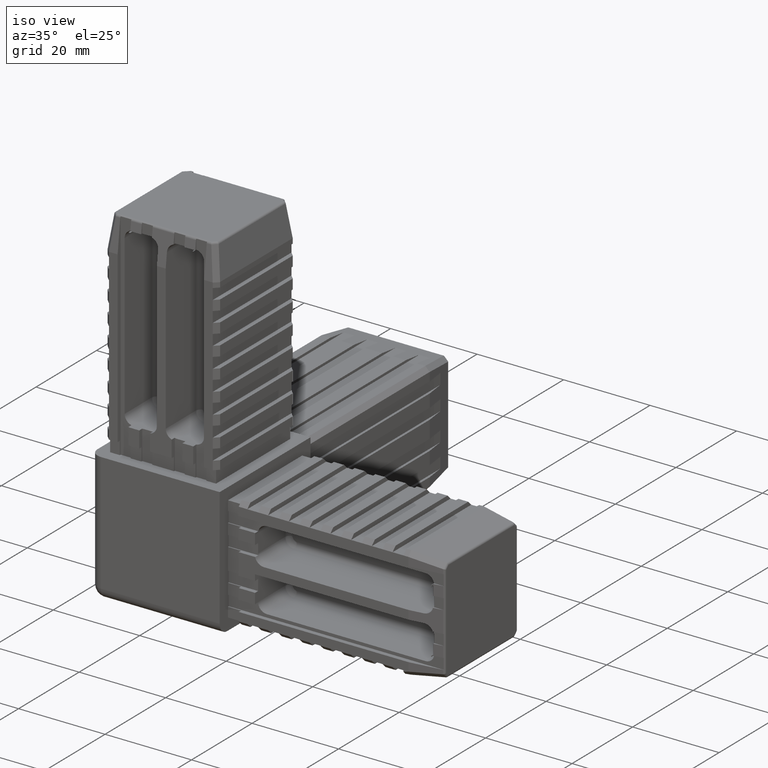
[diagram: clean part render]
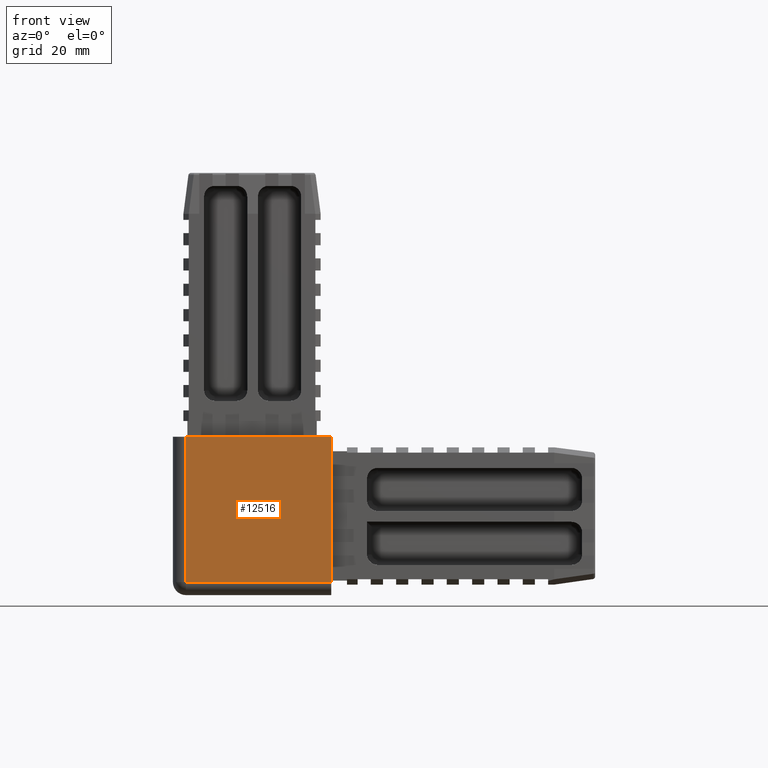
[diagram: tour spotlight — one face highlighted and labeled with its STEP entity id]
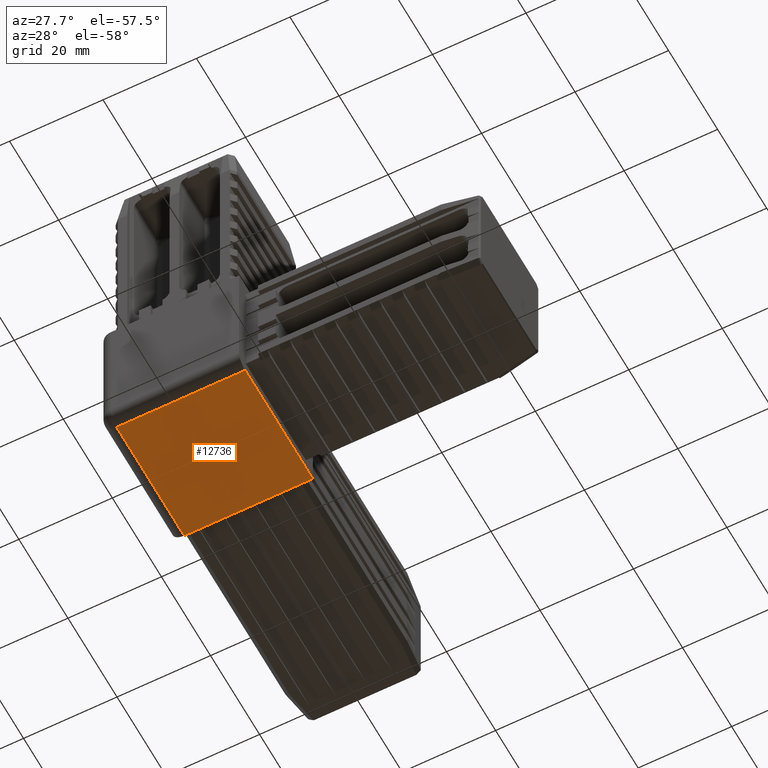
[diagram: tour spotlight — one face highlighted and labeled with its STEP entity id]
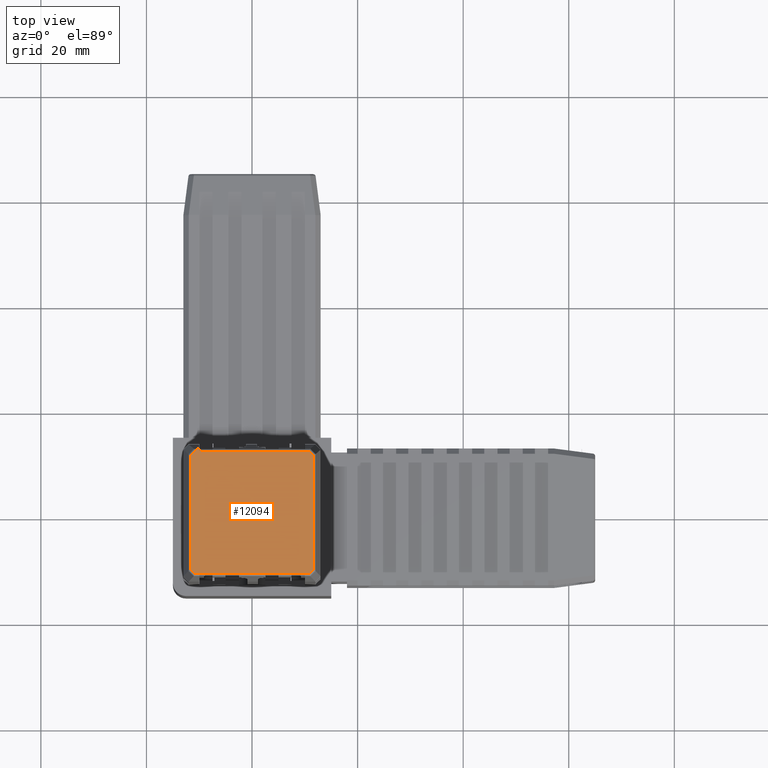
[diagram: tour spotlight — one face highlighted and labeled with its STEP entity id]
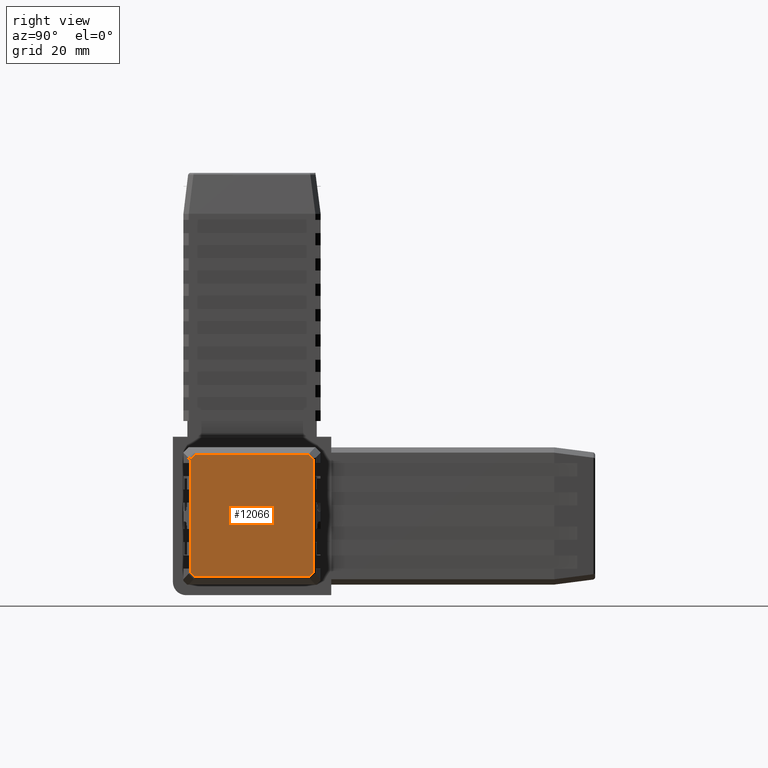
[diagram: tour spotlight — one face highlighted and labeled with its STEP entity id]
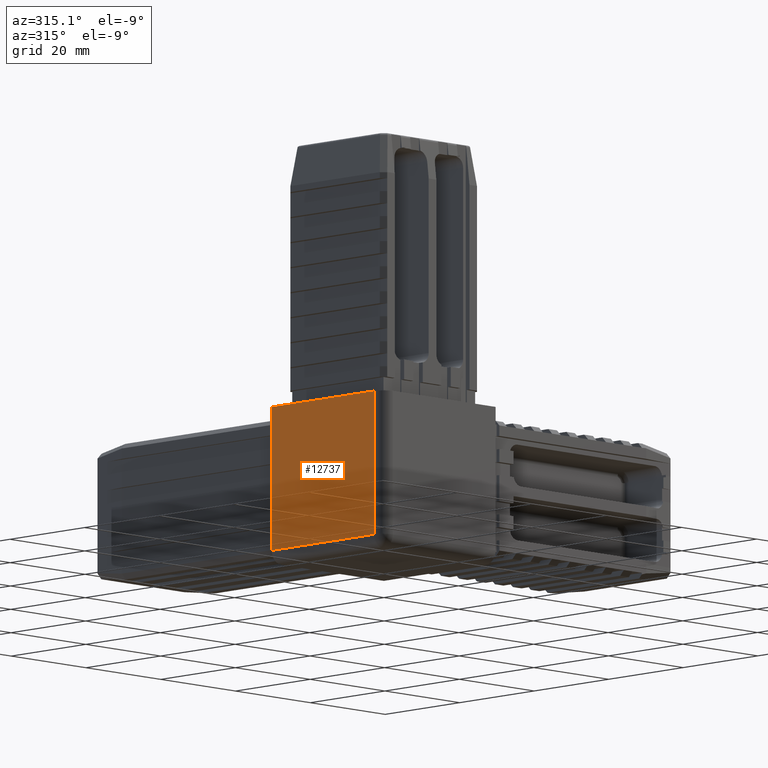
[diagram: tour spotlight — one face highlighted and labeled with its STEP entity id]
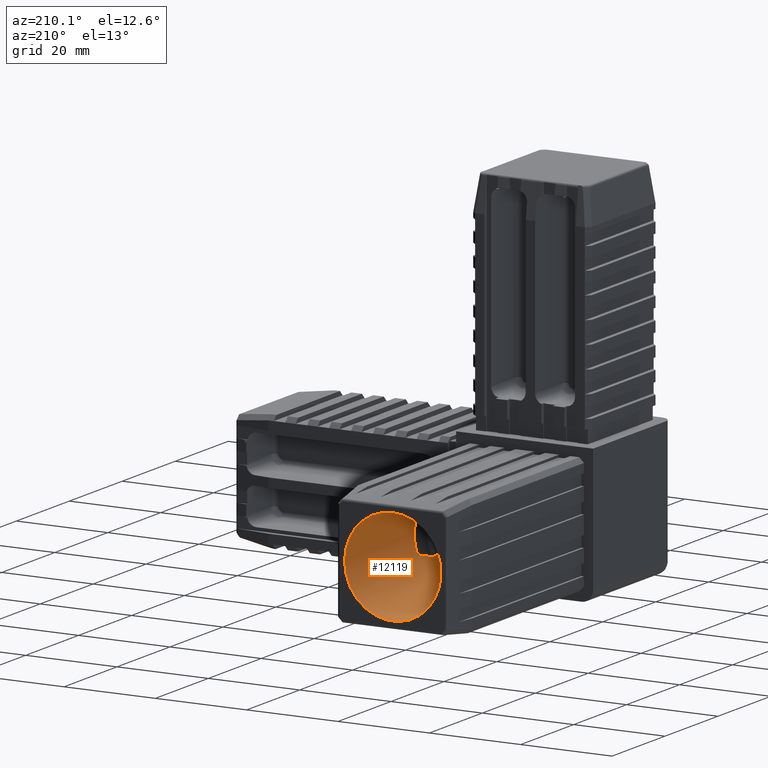
[diagram: tour spotlight — one face highlighted and labeled with its STEP entity id]
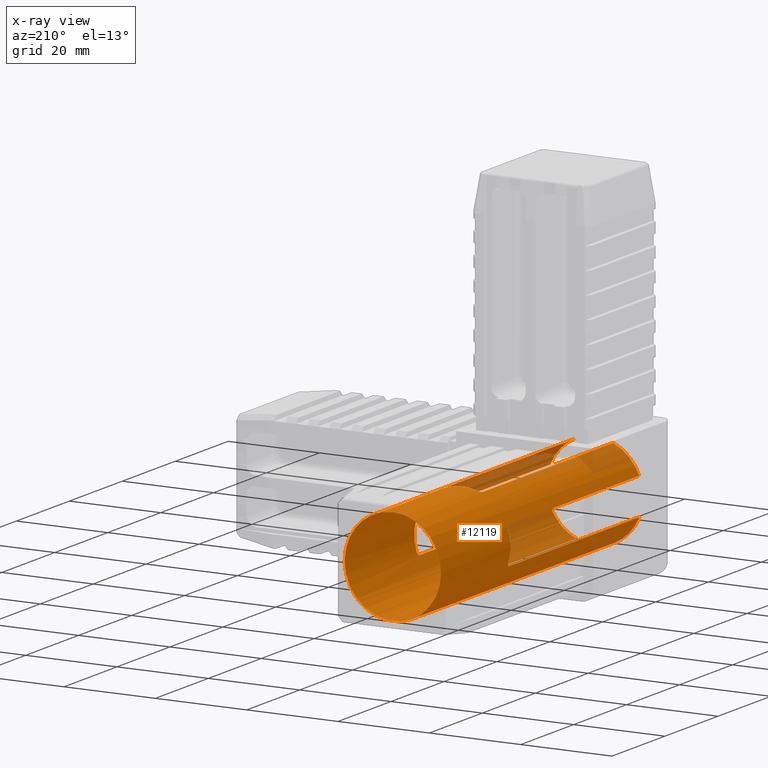
[diagram: x-ray of the same camera — body ghosted, this tour face saturated]
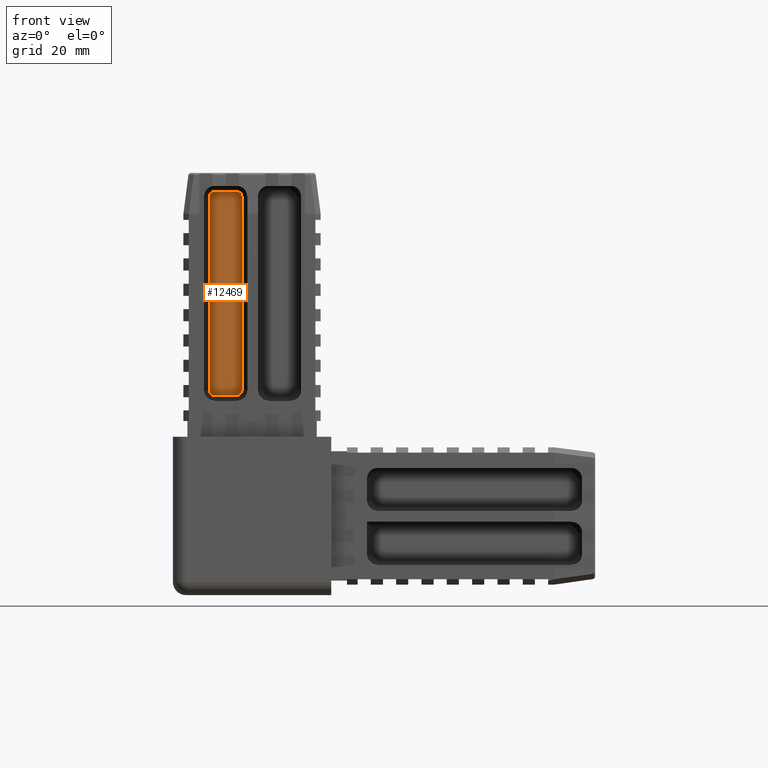
[diagram: tour spotlight — one face highlighted and labeled with its STEP entity id]
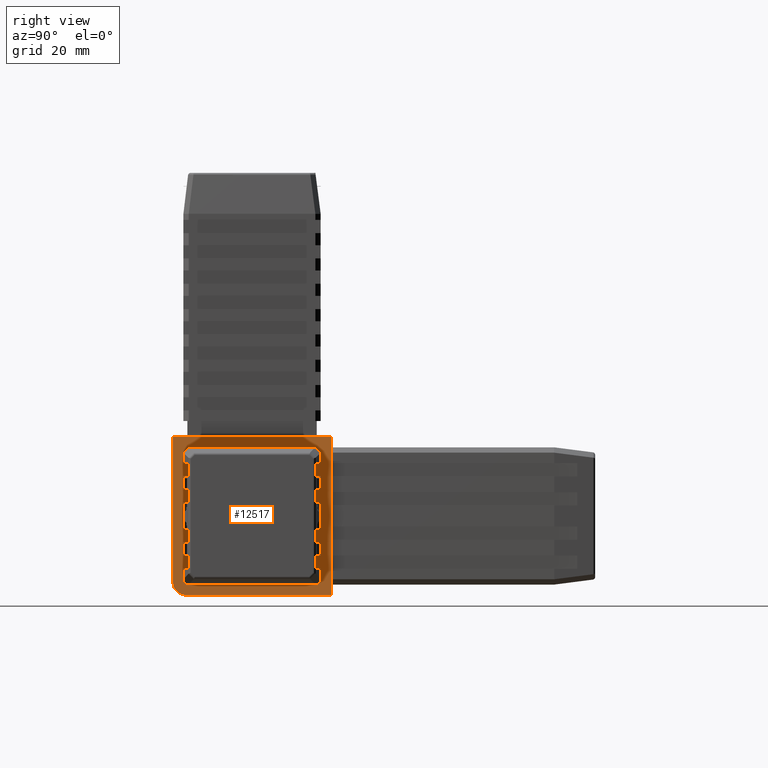
[diagram: tour spotlight — one face highlighted and labeled with its STEP entity id]
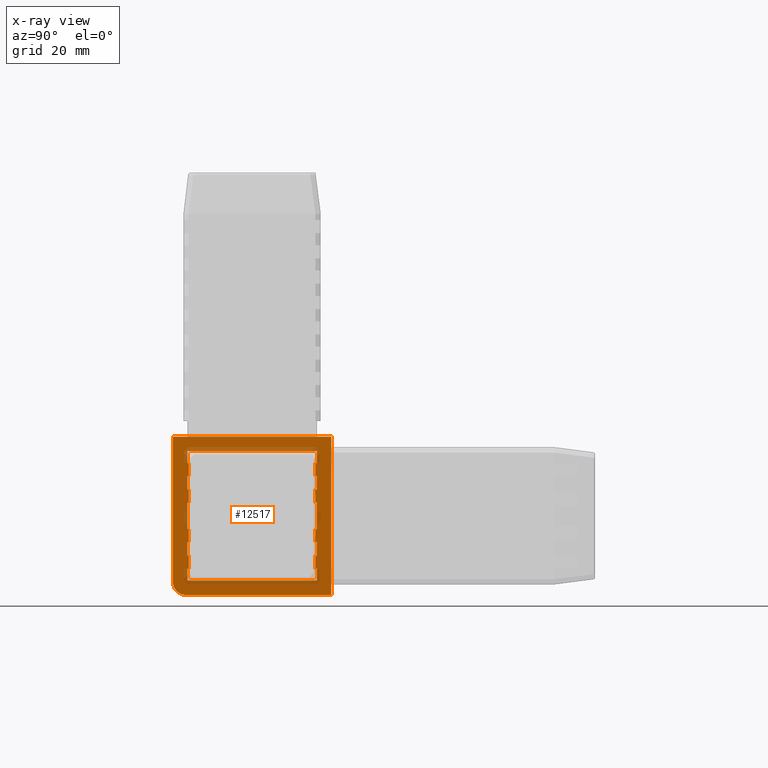
[diagram: x-ray of the same camera — body ghosted, this tour face saturated]
A machine part: a face-by-face anatomy tour. The part has 690 B-rep faces; the first image is the clean iso view, then the 8 largest visible faces are spotlighted one at a time (largest first), each with its STEP entity span.

Face 1 — front view, entity #12516. In plain terms, the highlighted planar face has unit normal (0, -1, 0).
Definition (entity closure, byte-faithful):
#662=PLANE('',#13523);
#1348=FACE_OUTER_BOUND('',#2040,.T.);
#2040=EDGE_LOOP('',(#10792,#10793,#10794,#10795));
#3517=LINE('',#20537,#5007);
#3520=LINE('',#20548,#5010);
#3522=LINE('',#20552,#5012);
#3558=LINE('',#20621,#5048);
#5007=VECTOR('',#16466,10.);
#5010=VECTOR('',#16477,10.);
#5012=VECTOR('',#16481,10.);
#5048=VECTOR('',#16519,10.);
#6294=VERTEX_POINT('',#20526);
#6297=VERTEX_POINT('',#20533);
#6302=VERTEX_POINT('',#20546);
#6303=VERTEX_POINT('',#20551);
#7977=EDGE_CURVE('',#6294,#6297,#3517,.T.);
#7982=EDGE_CURVE('',#6302,#6294,#3520,.T.);
#7984=EDGE_CURVE('',#6297,#6303,#3522,.T.);
#8020=EDGE_CURVE('',#6303,#6302,#3558,.T.);
#10792=ORIENTED_EDGE('',*,*,#7977,.F.);
#10793=ORIENTED_EDGE('',*,*,#7982,.F.);
#10794=ORIENTED_EDGE('',*,*,#8020,.F.);
#10795=ORIENTED_EDGE('',*,*,#7984,.F.);
#12516=ADVANCED_FACE('',(#1348),#662,.T.);
#13523=AXIS2_PLACEMENT_3D('',#20620,#16517,#16518);
#16466=DIRECTION('',(0.,0.,1.));
#16477=DIRECTION('',(-1.,0.,0.));
#16481=DIRECTION('',(1.,0.,0.));
#16517=DIRECTION('center_axis',(0.,-1.,0.));
#16518=DIRECTION('ref_axis',(1.,0.,0.));
#16519=DIRECTION('',(0.,0.,-1.));
#20526=CARTESIAN_POINT('',(-12.5,-15.,-12.5));
#20533=CARTESIAN_POINT('',(-12.5,-15.,15.));
#20537=CARTESIAN_POINT('',(-12.5,-15.,0.));
#20546=CARTESIAN_POINT('',(15.,-15.,-12.5));
#20548=CARTESIAN_POINT('',(-7.5,-15.,-12.5));
#20551=CARTESIAN_POINT('',(15.,-15.,15.));
#20552=CARTESIAN_POINT('',(15.,-15.,15.));
#20620=CARTESIAN_POINT('Origin',(-15.,-15.,0.));
#20621=CARTESIAN_POINT('',(15.,-15.,0.));

Face 2 — auxiliary view, entity #12736. In plain terms, the highlighted planar face has unit normal (0, 0, -1).
Definition (entity closure, byte-faithful):
#878=PLANE('',#13747);
#1568=FACE_OUTER_BOUND('',#2261,.T.);
#2261=EDGE_LOOP('',(#11852,#11853,#11854,#11855));
#3518=LINE('',#20542,#5008);
#3521=LINE('',#20549,#5011);
#3559=LINE('',#20624,#5049);
#3809=LINE('',#21207,#5299);
#5008=VECTOR('',#16471,10.);
#5011=VECTOR('',#16478,10.);
#5049=VECTOR('',#16522,10.);
#5299=VECTOR('',#17218,10.);
#6295=VERTEX_POINT('',#20527);
#6300=VERTEX_POINT('',#20540);
#6301=VERTEX_POINT('',#20545);
#6336=VERTEX_POINT('',#20623);
#7979=EDGE_CURVE('',#6300,#6295,#3518,.T.);
#7983=EDGE_CURVE('',#6295,#6301,#3521,.T.);
#8021=EDGE_CURVE('',#6336,#6301,#3559,.T.);
#8275=EDGE_CURVE('',#6300,#6336,#3809,.T.);
#11852=ORIENTED_EDGE('',*,*,#7979,.F.);
#11853=ORIENTED_EDGE('',*,*,#8275,.T.);
#11854=ORIENTED_EDGE('',*,*,#8021,.T.);
#11855=ORIENTED_EDGE('',*,*,#7983,.F.);
#12736=ADVANCED_FACE('',(#1568),#878,.T.);
#13747=AXIS2_PLACEMENT_3D('',#21206,#17216,#17217);
#16471=DIRECTION('',(0.,-1.,0.));
#16478=DIRECTION('',(1.,0.,0.));
#16522=DIRECTION('',(0.,-1.,0.));
#17216=DIRECTION('center_axis',(0.,0.,-1.));
#17217=DIRECTION('ref_axis',(-1.,0.,0.));
#17218=DIRECTION('',(1.,0.,0.));
#20527=CARTESIAN_POINT('',(-12.5,-12.5,-15.));
#20540=CARTESIAN_POINT('',(-12.5,15.,-15.));
#20542=CARTESIAN_POINT('',(-12.5,7.5,-15.));
#20545=CARTESIAN_POINT('',(15.,-12.5,-15.));
#20549=CARTESIAN_POINT('',(-7.5,-12.5,-15.));
#20623=CARTESIAN_POINT('',(15.,15.,-15.));
#20624=CARTESIAN_POINT('',(15.,15.,-15.));
#21206=CARTESIAN_POINT('Origin',(0.,0.,-15.));
#21207=CARTESIAN_POINT('',(-15.,15.,-15.));

Face 3 — top view, entity #12094. In plain terms, the highlighted planar face has unit normal (0, 0, 1).
Definition (entity closure, byte-faithful):
#373=PLANE('',#12879);
#926=FACE_OUTER_BOUND('',#1617,.T.);
#1617=EDGE_LOOP('',(#8611,#8612,#8613,#8614,#8615,#8616,#8617,#8618,#8619,
#8620,#8621,#8622));
#2478=LINE('',#17660,#3968);
#2481=LINE('',#17674,#3971);
#2483=LINE('',#17681,#3973);
#2484=LINE('',#17684,#3974);
#2494=LINE('',#17726,#3984);
#2495=LINE('',#17728,#3985);
#2496=LINE('',#17730,#3986);
#2497=LINE('',#17732,#3987);
#2498=LINE('',#17734,#3988);
#2499=LINE('',#17736,#3989);
#2500=LINE('',#17738,#3990);
#2501=LINE('',#17739,#3991);
#3968=VECTOR('',#14109,10.);
#3971=VECTOR('',#14122,10.);
#3973=VECTOR('',#14130,10.);
#3974=VECTOR('',#14133,10.);
#3984=VECTOR('',#14167,10.);
#3985=VECTOR('',#14168,10.);
#3986=VECTOR('',#14169,10.);
#3987=VECTOR('',#14170,10.);
#3988=VECTOR('',#14171,10.);
#3989=VECTOR('',#14172,10.);
#3990=VECTOR('',#14173,10.);
#3991=VECTOR('',#14174,10.);
#5477=VERTEX_POINT('',#17658);
#5478=VERTEX_POINT('',#17659);
#5484=VERTEX_POINT('',#17672);
#5486=VERTEX_POINT('',#17679);
#5487=VERTEX_POINT('',#17683);
#5507=VERTEX_POINT('',#17725);
#5508=VERTEX_POINT('',#17727);
#5509=VERTEX_POINT('',#17729);
#5510=VERTEX_POINT('',#17731);
#5511=VERTEX_POINT('',#17733);
#5512=VERTEX_POINT('',#17735);
#5513=VERTEX_POINT('',#17737);
#6662=EDGE_CURVE('',#5477,#5478,#2478,.T.);
#6669=EDGE_CURVE('',#5484,#5477,#2481,.T.);
#6673=EDGE_CURVE('',#5486,#5484,#2483,.T.);
#6674=EDGE_CURVE('',#5478,#5487,#2484,.T.);
#6695=EDGE_CURVE('',#5507,#5486,#2494,.T.);
#6696=EDGE_CURVE('',#5508,#5507,#2495,.T.);
#6697=EDGE_CURVE('',#5509,#5508,#2496,.T.);
#6698=EDGE_CURVE('',#5510,#5509,#2497,.T.);
#6699=EDGE_CURVE('',#5511,#5510,#2498,.T.);
#6700=EDGE_CURVE('',#5512,#5511,#2499,.T.);
#6701=EDGE_CURVE('',#5513,#5512,#2500,.T.);
#6702=EDGE_CURVE('',#5487,#5513,#2501,.T.);
#8611=ORIENTED_EDGE('',*,*,#6662,.F.);
#8612=ORIENTED_EDGE('',*,*,#6669,.F.);
#8613=ORIENTED_EDGE('',*,*,#6673,.F.);
#8614=ORIENTED_EDGE('',*,*,#6695,.F.);
#8615=ORIENTED_EDGE('',*,*,#6696,.F.);
#8616=ORIENTED_EDGE('',*,*,#6697,.F.);
#8617=ORIENTED_EDGE('',*,*,#6698,.F.);
#8618=ORIENTED_EDGE('',*,*,#6699,.F.);
#8619=ORIENTED_EDGE('',*,*,#6700,.F.);
#8620=ORIENTED_EDGE('',*,*,#6701,.F.);
#8621=ORIENTED_EDGE('',*,*,#6702,.F.);
#8622=ORIENTED_EDGE('',*,*,#6674,.F.);
#12094=ADVANCED_FACE('',(#926),#373,.T.);
#12879=AXIS2_PLACEMENT_3D('',#17724,#14165,#14166);
#14109=DIRECTION('',(-0.707492825656172,-0.706720525841047,0.));
#14122=DIRECTION('',(0.,-1.,0.));
#14130=DIRECTION('',(0.707106781186548,-0.707106781186547,0.));
#14133=DIRECTION('',(-1.,0.,0.));
#14165=DIRECTION('center_axis',(0.,0.,1.));
#14166=DIRECTION('ref_axis',(1.,0.,0.));
#14167=DIRECTION('',(1.,0.,0.));
#14168=DIRECTION('',(0.,1.,0.));
#14169=DIRECTION('',(1.,0.,0.));
#14170=DIRECTION('',(0.,-1.,0.));
#14171=DIRECTION('',(1.,0.,0.));
#14172=DIRECTION('',(0.70710678118655,0.707106781186545,0.));
#14173=DIRECTION('',(0.,1.,0.));
#14174=DIRECTION('',(-0.707492825656171,0.706720525841047,0.));
#17658=CARTESIAN_POINT('',(11.5603709803843,-10.9079817736663,65.));
#17659=CARTESIAN_POINT('',(10.8420989949087,-11.6254696927861,65.));
#17660=CARTESIAN_POINT('',(11.2191670993935,-11.2488131961887,65.));
#17672=CARTESIAN_POINT('',(11.5603709803843,10.8417229743494,65.));
#17674=CARTESIAN_POINT('',(11.5603709803843,-3.25,65.));
#17679=CARTESIAN_POINT('',(10.8417229743494,11.5603709803843,65.));
#17681=CARTESIAN_POINT('',(11.2010469773668,11.2010469773669,65.));
#17683=CARTESIAN_POINT('',(-10.8420989949087,-11.6254696927861,65.));
#17684=CARTESIAN_POINT('',(-3.25,-11.6254696927861,65.));
#17724=CARTESIAN_POINT('Origin',(0.,0.,65.));
#17725=CARTESIAN_POINT('',(-7.501,11.5603709803843,65.));
#17726=CARTESIAN_POINT('',(3.751,11.5603709803843,65.));
#17727=CARTESIAN_POINT('',(-7.501,11.5,65.));
#17728=CARTESIAN_POINT('',(-7.501,6.5,65.));
#17729=CARTESIAN_POINT('',(-9.998,11.5,65.));
#17730=CARTESIAN_POINT('',(-3.7505,11.5,65.));
#17731=CARTESIAN_POINT('',(-9.998,12.,65.));
#17732=CARTESIAN_POINT('',(-9.998,6.,65.));
#17733=CARTESIAN_POINT('',(-10.4020939547337,12.,65.));
#17734=CARTESIAN_POINT('',(6.5,12.,65.));
#17735=CARTESIAN_POINT('',(-11.5603709803843,10.8417229743494,65.));
#17736=CARTESIAN_POINT('',(-11.2010469773668,11.2010469773669,65.));
#17737=CARTESIAN_POINT('',(-11.5603709803843,-10.9079817736663,65.));
#17738=CARTESIAN_POINT('',(-11.5603709803843,3.25,65.));
#17739=CARTESIAN_POINT('',(-11.2192940046672,-11.2486864294449,65.));

Face 4 — right view, entity #12066. In plain terms, the highlighted planar face has unit normal (1, 0, 0).
Definition (entity closure, byte-faithful):
#353=PLANE('',#12811);
#898=FACE_OUTER_BOUND('',#1589,.T.);
#1589=EDGE_LOOP('',(#8419,#8420,#8421,#8422,#8423,#8424,#8425,#8426));
#2382=LINE('',#17387,#3872);
#2385=LINE('',#17401,#3875);
#2387=LINE('',#17408,#3877);
#2388=LINE('',#17411,#3878);
#2398=LINE('',#17453,#3888);
#2399=LINE('',#17455,#3889);
#2400=LINE('',#17457,#3890);
#2401=LINE('',#17458,#3891);
#3872=VECTOR('',#13877,10.);
#3875=VECTOR('',#13890,10.);
#3877=VECTOR('',#13898,10.);
#3878=VECTOR('',#13901,10.);
#3888=VECTOR('',#13935,10.);
#3889=VECTOR('',#13936,10.);
#3890=VECTOR('',#13937,10.);
#3891=VECTOR('',#13938,10.);
#5368=VERTEX_POINT('',#17385);
#5369=VERTEX_POINT('',#17386);
#5375=VERTEX_POINT('',#17399);
#5377=VERTEX_POINT('',#17406);
#5378=VERTEX_POINT('',#17410);
#5398=VERTEX_POINT('',#17452);
#5399=VERTEX_POINT('',#17454);
#5400=VERTEX_POINT('',#17456);
#6526=EDGE_CURVE('',#5368,#5369,#2382,.T.);
#6533=EDGE_CURVE('',#5375,#5368,#2385,.T.);
#6537=EDGE_CURVE('',#5377,#5375,#2387,.T.);
#6538=EDGE_CURVE('',#5369,#5378,#2388,.T.);
#6559=EDGE_CURVE('',#5398,#5377,#2398,.T.);
#6560=EDGE_CURVE('',#5399,#5398,#2399,.T.);
#6561=EDGE_CURVE('',#5400,#5399,#2400,.T.);
#6562=EDGE_CURVE('',#5378,#5400,#2401,.T.);
#8419=ORIENTED_EDGE('',*,*,#6526,.F.);
#8420=ORIENTED_EDGE('',*,*,#6533,.F.);
#8421=ORIENTED_EDGE('',*,*,#6537,.F.);
#8422=ORIENTED_EDGE('',*,*,#6559,.F.);
#8423=ORIENTED_EDGE('',*,*,#6560,.F.);
#8424=ORIENTED_EDGE('',*,*,#6561,.F.);
#8425=ORIENTED_EDGE('',*,*,#6562,.F.);
#8426=ORIENTED_EDGE('',*,*,#6538,.F.);
#12066=ADVANCED_FACE('',(#898),#353,.T.);
#12811=AXIS2_PLACEMENT_3D('',#17451,#13933,#13934);
#13877=DIRECTION('',(0.,-0.706499082679329,0.707713957876532));
#13890=DIRECTION('',(0.,-1.,0.));
#13898=DIRECTION('',(0.,-0.706499082679331,-0.707713957876531));
#13901=DIRECTION('',(0.,0.,1.));
#13933=DIRECTION('center_axis',(1.,0.,0.));
#13934=DIRECTION('ref_axis',(0.,0.,-1.));
#13935=DIRECTION('',(0.,0.,-1.));
#13936=DIRECTION('',(0.,0.707106781186545,-0.70710678118655));
#13937=DIRECTION('',(0.,1.,0.));
#13938=DIRECTION('',(0.,0.707106781186547,0.707106781186548));
#17385=CARTESIAN_POINT('',(65.,-10.8411824339293,-11.4659610505338));
#17386=CARTESIAN_POINT('',(65.,-11.5603709803843,-10.7455358084501));
#17387=CARTESIAN_POINT('',(65.,-11.1761520512258,-11.1304154292623));
#17399=CARTESIAN_POINT('',(65.,10.8411824339293,-11.4659610505338));
#17401=CARTESIAN_POINT('',(65.,-1.625,-11.4659610505338));
#17406=CARTESIAN_POINT('',(65.,11.5603709803843,-10.7455358084501));
#17408=CARTESIAN_POINT('',(65.,11.1745579575636,-11.1320122640815));
#17410=CARTESIAN_POINT('',(65.,-11.5603709803843,10.8417229743494));
#17411=CARTESIAN_POINT('',(65.,-11.5603709803843,3.25));
#17451=CARTESIAN_POINT('Origin',(65.,-2.22044604925031E-15,2.22044604925031E-15));
#17452=CARTESIAN_POINT('',(65.,11.5603709803843,10.8417229743494));
#17453=CARTESIAN_POINT('',(65.,11.5603709803843,-3.25));
#17454=CARTESIAN_POINT('',(65.,10.8417229743494,11.5603709803843));
#17455=CARTESIAN_POINT('',(65.,11.2010469773669,11.2010469773668));
#17456=CARTESIAN_POINT('',(65.,-10.8417229743494,11.5603709803843));
#17457=CARTESIAN_POINT('',(65.,3.25,11.5603709803843));
#17458=CARTESIAN_POINT('',(65.,-11.2010469773669,11.2010469773668));

Face 5 — auxiliary view, entity #12737. In plain terms, the highlighted planar face has unit normal (-1, 0, 0).
Definition (entity closure, byte-faithful):
#879=PLANE('',#13748);
#1569=FACE_OUTER_BOUND('',#2262,.T.);
#2262=EDGE_LOOP('',(#11856,#11857,#11858,#11859));
#3516=LINE('',#20536,#5006);
#3519=LINE('',#20543,#5009);
#3525=LINE('',#20557,#5015);
#3810=LINE('',#21209,#5300);
#5006=VECTOR('',#16465,10.);
#5009=VECTOR('',#16472,10.);
#5015=VECTOR('',#16484,10.);
#5300=VECTOR('',#17221,10.);
#6296=VERTEX_POINT('',#20529);
#6298=VERTEX_POINT('',#20534);
#6299=VERTEX_POINT('',#20539);
#6305=VERTEX_POINT('',#20555);
#7976=EDGE_CURVE('',#6298,#6296,#3516,.T.);
#7980=EDGE_CURVE('',#6296,#6299,#3519,.T.);
#7987=EDGE_CURVE('',#6305,#6298,#3525,.T.);
#8276=EDGE_CURVE('',#6299,#6305,#3810,.T.);
#11856=ORIENTED_EDGE('',*,*,#7976,.F.);
#11857=ORIENTED_EDGE('',*,*,#7987,.F.);
#11858=ORIENTED_EDGE('',*,*,#8276,.F.);
#11859=ORIENTED_EDGE('',*,*,#7980,.F.);
#12737=ADVANCED_FACE('',(#1569),#879,.T.);
#13748=AXIS2_PLACEMENT_3D('',#21208,#17219,#17220);
#16465=DIRECTION('',(0.,0.,-1.));
#16472=DIRECTION('',(0.,1.,0.));
#16484=DIRECTION('',(0.,-1.,0.));
#17219=DIRECTION('center_axis',(-1.,0.,0.));
#17220=DIRECTION('ref_axis',(0.,-1.,0.));
#17221=DIRECTION('',(0.,0.,1.));
#20529=CARTESIAN_POINT('',(-15.,-12.5,-12.5));
#20534=CARTESIAN_POINT('',(-15.,-12.5,15.));
#20536=CARTESIAN_POINT('',(-15.,-12.5,0.));
#20539=CARTESIAN_POINT('',(-15.,15.,-12.5));
#20543=CARTESIAN_POINT('',(-15.,7.5,-12.5));
#20555=CARTESIAN_POINT('',(-15.,15.,15.));
#20557=CARTESIAN_POINT('',(-15.,-15.,15.));
#21208=CARTESIAN_POINT('Origin',(-15.,15.,0.));
#21209=CARTESIAN_POINT('',(-15.,15.,0.));

Face 6 — auxiliary view, entity #12119. An x-ray twin of the same camera follows (body ghosted, this face saturated) — the face is partly hidden behind the body. In plain terms, the highlighted cylindrical surface (bore or boss wall) has radius 10.55 mm, axis along (0, 1, 0).
Definition (entity closure, byte-faithful):
#55=B_SPLINE_CURVE_WITH_KNOTS('',3,(#17940,#17941,#17942,#17943,#17944,
#17945,#17946,#17947,#17948,#17949),.UNSPECIFIED.,.F.,.F.,(4,2,2,2,4),(0.115373409522786,
0.145465756081297,0.175558102639807,0.203784935723987,0.232011768808168),
 .UNSPECIFIED.);
#56=B_SPLINE_CURVE_WITH_KNOTS('',3,(#17957,#17958,#17959,#17960,#17961,
#17962,#17963,#17964,#17965,#17966),.UNSPECIFIED.,.F.,.F.,(4,2,2,2,4),(0.232012311306723,
0.260239144390903,0.288465977475084,0.318558324033594,0.348650670592105),
 .UNSPECIFIED.);
#57=B_SPLINE_CURVE_WITH_KNOTS('',3,(#17970,#17971,#17972,#17973,#17974,
#17975,#17976,#17977,#17978,#17979),.UNSPECIFIED.,.F.,.F.,(4,2,2,2,4),(0.115373409522786,
0.145465756081296,0.175558102639807,0.203784935723987,0.232011768808167),
 .UNSPECIFIED.);
#58=B_SPLINE_CURVE_WITH_KNOTS('',3,(#17987,#17988,#17989,#17990,#17991,
#17992,#17993,#17994,#17995,#17996),.UNSPECIFIED.,.F.,.F.,(4,2,2,2,4),(0.232011768808168,
0.260238601892348,0.288465434976528,0.318557781535039,0.348650128093549),
 .UNSPECIFIED.);
#59=B_SPLINE_CURVE_WITH_KNOTS('',3,(#18000,#18001,#18002,#18003,#18004,
#18005,#18006,#18007,#18008,#18009),.UNSPECIFIED.,.F.,.F.,(4,2,2,2,4),(0.115373409522786,
0.145465756081297,0.175558102639807,0.203784935723987,0.232011768808168),
 .UNSPECIFIED.);
#60=B_SPLINE_CURVE_WITH_KNOTS('',3,(#18017,#18018,#18019,#18020,#18021,
#18022,#18023,#18024,#18025,#18026),.UNSPECIFIED.,.F.,.F.,(4,2,2,2,4),(0.232011768808167,
0.260238601892348,0.288465434976528,0.318557781535038,0.348650128093549),
 .UNSPECIFIED.);
#61=B_SPLINE_CURVE_WITH_KNOTS('',3,(#18030,#18031,#18032,#18033,#18034,
#18035,#18036,#18037,#18038,#18039),.UNSPECIFIED.,.F.,.F.,(4,2,2,2,4),(0.115373409522786,
0.145465756081297,0.175558102639807,0.203784935723987,0.232011768808168),
 .UNSPECIFIED.);
#62=B_SPLINE_CURVE_WITH_KNOTS('',3,(#18047,#18048,#18049,#18050,#18051,
#18052,#18053,#18054,#18055,#18056),.UNSPECIFIED.,.F.,.F.,(4,2,2,2,4),(0.232011768808168,
0.260238601892348,0.288465434976528,0.318557781535039,0.348650128093549),
 .UNSPECIFIED.);
#120=CIRCLE('',#12928,10.55);
#121=CIRCLE('',#12929,10.55);
#122=CIRCLE('',#12930,10.55);
#123=CIRCLE('',#12932,10.55);
#124=CIRCLE('',#12933,10.55);
#125=CIRCLE('',#12934,10.55);
#126=CIRCLE('',#12935,10.55);
#127=CIRCLE('',#12936,10.55);
#128=CIRCLE('',#12937,10.55);
#129=CIRCLE('',#12938,10.55);
#130=CIRCLE('',#12939,10.55);
#131=CIRCLE('',#12940,10.55);
#951=FACE_OUTER_BOUND('',#1642,.T.);
#1642=EDGE_LOOP('',(#8771,#8772,#8773,#8774,#8775,#8776,#8777,#8778,#8779,
#8780,#8781,#8782,#8783,#8784,#8785,#8786,#8787,#8788,#8789,#8790,#8791,
#8792,#8793,#8794,#8795,#8796,#8797,#8798,#8799,#8800));
#2572=LINE('',#17936,#4062);
#2573=LINE('',#17951,#4063);
#2574=LINE('',#17955,#4064);
#2575=LINE('',#17981,#4065);
#2576=LINE('',#17985,#4066);
#2577=LINE('',#18011,#4067);
#2578=LINE('',#18015,#4068);
#2579=LINE('',#18041,#4069);
#2580=LINE('',#18045,#4070);
#4062=VECTOR('',#14349,10.55);
#4063=VECTOR('',#14352,10.);
#4064=VECTOR('',#14355,10.);
#4065=VECTOR('',#14358,10.);
#4066=VECTOR('',#14361,10.);
#4067=VECTOR('',#14364,10.);
#4068=VECTOR('',#14367,10.);
#4069=VECTOR('',#14370,10.);
#4070=VECTOR('',#14373,10.);
#5584=VERTEX_POINT('',#17927);
#5585=VERTEX_POINT('',#17929);
#5586=VERTEX_POINT('',#17931);
#5587=VERTEX_POINT('',#17935);
#5588=VERTEX_POINT('',#17937);
#5589=VERTEX_POINT('',#17939);
#5590=VERTEX_POINT('',#17950);
#5591=VERTEX_POINT('',#17952);
#5592=VERTEX_POINT('',#17954);
#5593=VERTEX_POINT('',#17956);
#5594=VERTEX_POINT('',#17967);
#5595=VERTEX_POINT('',#17969);
#5596=VERTEX_POINT('',#17980);
#5597=VERTEX_POINT('',#17982);
#5598=VERTEX_POINT('',#17984);
#5599=VERTEX_POINT('',#17986);
#5600=VERTEX_POINT('',#17997);
#5601=VERTEX_POINT('',#17999);
#5602=VERTEX_POINT('',#18010);
#5603=VERTEX_POINT('',#18012);
#5604=VERTEX_POINT('',#18014);
#5605=VERTEX_POINT('',#18016);
#5606=VERTEX_POINT('',#18027);
#5607=VERTEX_POINT('',#18029);
#5608=VERTEX_POINT('',#18040);
#5609=VERTEX_POINT('',#18042);
#5610=VERTEX_POINT('',#18044);
#5611=VERTEX_POINT('',#18046);
#6797=EDGE_CURVE('',#5584,#5585,#120,.T.);
#6798=EDGE_CURVE('',#5585,#5586,#121,.T.);
#6799=EDGE_CURVE('',#5586,#5584,#122,.T.);
#6800=EDGE_CURVE('',#5585,#5587,#2572,.T.);
#6801=EDGE_CURVE('',#5587,#5588,#123,.T.);
#6802=EDGE_CURVE('',#5589,#5588,#55,.F.);
#6803=EDGE_CURVE('',#5589,#5590,#2573,.T.);
#6804=EDGE_CURVE('',#5591,#5590,#124,.T.);
#6805=EDGE_CURVE('',#5591,#5592,#2574,.T.);
#6806=EDGE_CURVE('',#5593,#5592,#56,.F.);
#6807=EDGE_CURVE('',#5593,#5594,#125,.T.);
#6808=EDGE_CURVE('',#5595,#5594,#57,.F.);
#6809=EDGE_CURVE('',#5595,#5596,#2575,.T.);
#6810=EDGE_CURVE('',#5597,#5596,#126,.T.);
#6811=EDGE_CURVE('',#5597,#5598,#2576,.T.);
#6812=EDGE_CURVE('',#5599,#5598,#58,.F.);
#6813=EDGE_CURVE('',#5599,#5600,#127,.T.);
#6814=EDGE_CURVE('',#5601,#5600,#59,.F.);
#6815=EDGE_CURVE('',#5601,#5602,#2577,.T.);
#6816=EDGE_CURVE('',#5603,#5602,#128,.T.);
#6817=EDGE_CURVE('',#5603,#5604,#2578,.T.);
#6818=EDGE_CURVE('',#5605,#5604,#60,.F.);
#6819=EDGE_CURVE('',#5605,#5606,#129,.T.);
#6820=EDGE_CURVE('',#5607,#5606,#61,.F.);
#6821=EDGE_CURVE('',#5607,#5608,#2579,.T.);
#6822=EDGE_CURVE('',#5609,#5608,#130,.T.);
#6823=EDGE_CURVE('',#5609,#5610,#2580,.T.);
#6824=EDGE_CURVE('',#5611,#5610,#62,.F.);
#6825=EDGE_CURVE('',#5611,#5587,#131,.T.);
#8771=ORIENTED_EDGE('',*,*,#6799,.F.);
#8772=ORIENTED_EDGE('',*,*,#6798,.F.);
#8773=ORIENTED_EDGE('',*,*,#6800,.T.);
#8774=ORIENTED_EDGE('',*,*,#6801,.T.);
#8775=ORIENTED_EDGE('',*,*,#6802,.F.);
#8776=ORIENTED_EDGE('',*,*,#6803,.T.);
#8777=ORIENTED_EDGE('',*,*,#6804,.F.);
#8778=ORIENTED_EDGE('',*,*,#6805,.T.);
#8779=ORIENTED_EDGE('',*,*,#6806,.F.);
#8780=ORIENTED_EDGE('',*,*,#6807,.T.);
#8781=ORIENTED_EDGE('',*,*,#6808,.F.);
#8782=ORIENTED_EDGE('',*,*,#6809,.T.);
#8783=ORIENTED_EDGE('',*,*,#6810,.F.);
#8784=ORIENTED_EDGE('',*,*,#6811,.T.);
#8785=ORIENTED_EDGE('',*,*,#6812,.F.);
#8786=ORIENTED_EDGE('',*,*,#6813,.T.);
#8787=ORIENTED_EDGE('',*,*,#6814,.F.);
#8788=ORIENTED_EDGE('',*,*,#6815,.T.);
#8789=ORIENTED_EDGE('',*,*,#6816,.F.);
#8790=ORIENTED_EDGE('',*,*,#6817,.T.);
#8791=ORIENTED_EDGE('',*,*,#6818,.F.);
#8792=ORIENTED_EDGE('',*,*,#6819,.T.);
#8793=ORIENTED_EDGE('',*,*,#6820,.F.);
#8794=ORIENTED_EDGE('',*,*,#6821,.T.);
#8795=ORIENTED_EDGE('',*,*,#6822,.F.);
#8796=ORIENTED_EDGE('',*,*,#6823,.T.);
#8797=ORIENTED_EDGE('',*,*,#6824,.F.);
#8798=ORIENTED_EDGE('',*,*,#6825,.T.);
#8799=ORIENTED_EDGE('',*,*,#6800,.F.);
#8800=ORIENTED_EDGE('',*,*,#6797,.F.);
#11962=CYLINDRICAL_SURFACE('',#12931,10.55);
#12119=ADVANCED_FACE('',(#951),#11962,.F.);
#12928=AXIS2_PLACEMENT_3D('',#17930,#14341,#14342);
#12929=AXIS2_PLACEMENT_3D('',#17932,#14343,#14344);
#12930=AXIS2_PLACEMENT_3D('',#17933,#14345,#14346);
#12931=AXIS2_PLACEMENT_3D('',#17934,#14347,#14348);
#12932=AXIS2_PLACEMENT_3D('',#17938,#14350,#14351);
#12933=AXIS2_PLACEMENT_3D('',#17953,#14353,#14354);
#12934=AXIS2_PLACEMENT_3D('',#17968,#14356,#14357);
#12935=AXIS2_PLACEMENT_3D('',#17983,#14359,#14360);
#12936=AXIS2_PLACEMENT_3D('',#17998,#14362,#14363);
#12937=AXIS2_PLACEMENT_3D('',#18013,#14365,#14366);
#12938=AXIS2_PLACEMENT_3D('',#18028,#14368,#14369);
#12939=AXIS2_PLACEMENT_3D('',#18043,#14371,#14372);
#12940=AXIS2_PLACEMENT_3D('',#18057,#14374,#14375);
#14341=DIRECTION('center_axis',(0.,-1.,0.));
#14342=DIRECTION('ref_axis',(-1.,0.,1.22464679914735E-16));
#14343=DIRECTION('center_axis',(0.,-1.,0.));
#14344=DIRECTION('ref_axis',(-1.,0.,1.22464679914735E-16));
#14345=DIRECTION('center_axis',(0.,-1.,0.));
#14346=DIRECTION('ref_axis',(-1.,0.,1.22464679914735E-16));
#14347=DIRECTION('center_axis',(0.,1.,0.));
#14348=DIRECTION('ref_axis',(1.,0.,0.));
#14349=DIRECTION('',(0.,-1.,0.));
#14350=DIRECTION('center_axis',(0.,-1.,0.));
#14351=DIRECTION('ref_axis',(1.,0.,0.));
#14352=DIRECTION('',(0.,-1.,0.));
#14353=DIRECTION('center_axis',(0.,1.,0.));
#14354=DIRECTION('ref_axis',(1.,0.,0.));
#14355=DIRECTION('',(0.,1.,0.));
#14356=DIRECTION('center_axis',(0.,-1.,0.));
#14357=DIRECTION('ref_axis',(1.,0.,0.));
#14358=DIRECTION('',(0.,-1.,0.));
#14359=DIRECTION('center_axis',(0.,1.,0.));
#14360=DIRECTION('ref_axis',(1.,0.,0.));
#14361=DIRECTION('',(0.,1.,0.));
#14362=DIRECTION('center_axis',(0.,-1.,0.));
#14363=DIRECTION('ref_axis',(1.,0.,0.));
#14364=DIRECTION('',(0.,-1.,0.));
#14365=DIRECTION('center_axis',(0.,1.,0.));
#14366=DIRECTION('ref_axis',(1.,0.,0.));
#14367=DIRECTION('',(0.,1.,0.));
#14368=DIRECTION('center_axis',(0.,-1.,0.));
#14369=DIRECTION('ref_axis',(1.,0.,0.));
#14370=DIRECTION('',(0.,-1.,0.));
#14371=DIRECTION('center_axis',(0.,1.,0.));
#14372=DIRECTION('ref_axis',(1.,0.,0.));
#14373=DIRECTION('',(0.,1.,0.));
#14374=DIRECTION('center_axis',(0.,-1.,0.));
#14375=DIRECTION('ref_axis',(1.,0.,0.));
#17927=CARTESIAN_POINT('',(-1.29200237310046E-15,64.8,10.55));
#17929=CARTESIAN_POINT('',(-10.55,64.8,-9.28443676149855E-16));
#17930=CARTESIAN_POINT('Origin',(0.,64.8,-2.22044604925031E-15));
#17931=CARTESIAN_POINT('',(10.55,64.8,-2.22044604925031E-15));
#17932=CARTESIAN_POINT('Origin',(0.,64.8,-2.22044604925031E-15));
#17933=CARTESIAN_POINT('Origin',(0.,64.8,-2.22044604925031E-15));
#17934=CARTESIAN_POINT('Origin',(0.,26.75,-2.22044604925031E-15));
#17935=CARTESIAN_POINT('',(-10.55,38.5,-9.28443676149855E-16));
#17936=CARTESIAN_POINT('',(-10.55,26.75,-9.28443676149855E-16));
#17937=CARTESIAN_POINT('',(-10.0323877516771,38.5,-3.264));
#17938=CARTESIAN_POINT('Origin',(0.,38.5,-2.22044604925031E-15));
#17939=CARTESIAN_POINT('',(-9.75655184991091,37.75,-4.014));
#17940=CARTESIAN_POINT('Ctrl Pts',(-10.0323877516771,38.5,-3.264));
#17941=CARTESIAN_POINT('Ctrl Pts',(-10.0013541279276,38.5,-3.35938644203249));
#17942=CARTESIAN_POINT('Ctrl Pts',(-9.96667768648848,38.4807592182303,-3.46087927548022));
#17943=CARTESIAN_POINT('Ctrl Pts',(-9.8998062520879,38.4023000138178,-3.64776447127533));
#17944=CARTESIAN_POINT('Ctrl Pts',(-9.86767998335906,38.3430831244983,-3.73318206114738));
#17945=CARTESIAN_POINT('Ctrl Pts',(-9.81705902937632,38.2087426977789,-3.86425633624037));
#17946=CARTESIAN_POINT('Ctrl Pts',(-9.79466514050265,38.1261594522832,-3.92028912593033));
#17947=CARTESIAN_POINT('Ctrl Pts',(-9.76435472150205,37.9438524350569,-3.99518572007266));
#17948=CARTESIAN_POINT('Ctrl Pts',(-9.75655184991091,37.8440894436139,-4.014));
#17949=CARTESIAN_POINT('Ctrl Pts',(-9.75655184991091,37.75,-4.014));
#17950=CARTESIAN_POINT('',(-9.75655184991091,-11.5,-4.014));
#17951=CARTESIAN_POINT('',(-9.75655184991091,26.75,-4.014));
#17952=CARTESIAN_POINT('',(-4.014,-11.5,-9.75655184991091));
#17953=CARTESIAN_POINT('Origin',(0.,-11.5,-2.22044604925031E-15));
#17954=CARTESIAN_POINT('',(-4.014,37.75,-9.75655184991091));
#17955=CARTESIAN_POINT('',(-4.014,26.75,-9.75655184991091));
#17956=CARTESIAN_POINT('',(-3.264,38.5,-10.0323877516771));
#17957=CARTESIAN_POINT('Ctrl Pts',(-4.014,37.75,-9.75655184991091));
#17958=CARTESIAN_POINT('Ctrl Pts',(-4.014,37.8440894436139,-9.75655184991091));
#17959=CARTESIAN_POINT('Ctrl Pts',(-3.99518572007266,37.9438524350569,-9.76435472150205));
#17960=CARTESIAN_POINT('Ctrl Pts',(-3.92028912593033,38.1261594522831,-9.79466514050265));
#17961=CARTESIAN_POINT('Ctrl Pts',(-3.86425633624036,38.2087426977789,-9.81705902937632));
#17962=CARTESIAN_POINT('Ctrl Pts',(-3.73318206114737,38.3430831244982,-9.86767998335906));
#17963=CARTESIAN_POINT('Ctrl Pts',(-3.64776447127533,38.4023000138178,-9.8998062520879));
#17964=CARTESIAN_POINT('Ctrl Pts',(-3.46087927548022,38.4807592182303,-9.96667768648848));
#17965=CARTESIAN_POINT('Ctrl Pts',(-3.35938644203249,38.5,-10.0013541279276));
#17966=CARTESIAN_POINT('Ctrl Pts',(-3.264,38.5,-10.0323877516771));
#17967=CARTESIAN_POINT('',(3.264,38.5,-10.0323877516771));
#17968=CARTESIAN_POINT('Origin',(0.,38.5,-2.22044604925031E-15));
#17969=CARTESIAN_POINT('',(4.014,37.75,-9.75655184991091));
#17970=CARTESIAN_POINT('Ctrl Pts',(3.264,38.5,-10.0323877516771));
#17971=CARTESIAN_POINT('Ctrl Pts',(3.35938644203249,38.5,-10.0013541279276));
#17972=CARTESIAN_POINT('Ctrl Pts',(3.46087927548022,38.4807592182303,-9.96667768648848));
#17973=CARTESIAN_POINT('Ctrl Pts',(3.64776447127533,38.4023000138178,-9.8998062520879));
#17974=CARTESIAN_POINT('Ctrl Pts',(3.73318206114737,38.3430831244982,-9.86767998335906));
#17975=CARTESIAN_POINT('Ctrl Pts',(3.86425633624036,38.2087426977789,-9.81705902937632));
#17976=CARTESIAN_POINT('Ctrl Pts',(3.92028912593033,38.1261594522831,-9.79466514050265));
#17977=CARTESIAN_POINT('Ctrl Pts',(3.99518572007266,37.9438524350569,-9.76435472150205));
#17978=CARTESIAN_POINT('Ctrl Pts',(4.014,37.8440894436139,-9.75655184991091));
#17979=CARTESIAN_POINT('Ctrl Pts',(4.014,37.75,-9.75655184991091));
#17980=CARTESIAN_POINT('',(4.014,-11.5,-9.75655184991091));
#17981=CARTESIAN_POINT('',(4.014,26.75,-9.75655184991091));
#17982=CARTESIAN_POINT('',(9.75655184991091,-11.5,-4.014));
#17983=CARTESIAN_POINT('Origin',(0.,-11.5,-2.22044604925031E-15));
#17984=CARTESIAN_POINT('',(9.75655184991091,37.75,-4.014));
#17985=CARTESIAN_POINT('',(9.75655184991091,26.75,-4.014));
#17986=CARTESIAN_POINT('',(10.0323877516771,38.5,-3.264));
#17987=CARTESIAN_POINT('Ctrl Pts',(9.75655184991091,37.75,-4.014));
#17988=CARTESIAN_POINT('Ctrl Pts',(9.75655184991091,37.8440894436139,-4.014));
#17989=CARTESIAN_POINT('Ctrl Pts',(9.76435472150205,37.9438524350569,-3.99518572007266));
#17990=CARTESIAN_POINT('Ctrl Pts',(9.79466514050265,38.1261594522832,-3.92028912593033));
#17991=CARTESIAN_POINT('Ctrl Pts',(9.81705902937632,38.2087426977789,-3.86425633624037));
#17992=CARTESIAN_POINT('Ctrl Pts',(9.86767998335906,38.3430831244983,-3.73318206114738));
#17993=CARTESIAN_POINT('Ctrl Pts',(9.8998062520879,38.4023000138178,-3.64776447127534));
#17994=CARTESIAN_POINT('Ctrl Pts',(9.96667768648848,38.4807592182303,-3.46087927548022));
#17995=CARTESIAN_POINT('Ctrl Pts',(10.0013541279276,38.5,-3.35938644203249));
#17996=CARTESIAN_POINT('Ctrl Pts',(10.0323877516771,38.5,-3.264));
#17997=CARTESIAN_POINT('',(10.0323877516771,38.5,3.264));
#17998=CARTESIAN_POINT('Origin',(0.,38.5,-2.22044604925031E-15));
#17999=CARTESIAN_POINT('',(9.75655184991091,37.75,4.014));
#18000=CARTESIAN_POINT('Ctrl Pts',(10.0323877516771,38.5,3.264));
#18001=CARTESIAN_POINT('Ctrl Pts',(10.0013541279276,38.5,3.35938644203249));
#18002=CARTESIAN_POINT('Ctrl Pts',(9.96667768648848,38.4807592182303,3.46087927548022));
#18003=CARTESIAN_POINT('Ctrl Pts',(9.8998062520879,38.4023000138178,3.64776447127533));
#18004=CARTESIAN_POINT('Ctrl Pts',(9.86767998335906,38.3430831244983,3.73318206114737));
#18005=CARTESIAN_POINT('Ctrl Pts',(9.81705902937632,38.2087426977789,3.86425633624036));
#18006=CARTESIAN_POINT('Ctrl Pts',(9.79466514050265,38.1261594522832,3.92028912593033));
#18007=CARTESIAN_POINT('Ctrl Pts',(9.76435472150205,37.9438524350569,3.99518572007266));
#18008=CARTESIAN_POINT('Ctrl Pts',(9.75655184991091,37.8440894436139,4.014));
#18009=CARTESIAN_POINT('Ctrl Pts',(9.75655184991091,37.75,4.014));
#18010=CARTESIAN_POINT('',(9.75655184991091,-11.5,4.014));
#18011=CARTESIAN_POINT('',(9.75655184991091,26.75,4.014));
#18012=CARTESIAN_POINT('',(4.014,-11.5,9.75655184991091));
#18013=CARTESIAN_POINT('Origin',(0.,-11.5,-2.22044604925031E-15));
#18014=CARTESIAN_POINT('',(4.014,37.75,9.75655184991091));
#18015=CARTESIAN_POINT('',(4.014,26.75,9.75655184991091));
#18016=CARTESIAN_POINT('',(3.264,38.5,10.0323877516771));
#18017=CARTESIAN_POINT('Ctrl Pts',(4.014,37.75,9.75655184991091));
#18018=CARTESIAN_POINT('Ctrl Pts',(4.014,37.8440894436139,9.75655184991091));
#18019=CARTESIAN_POINT('Ctrl Pts',(3.99518572007266,37.9438524350569,9.76435472150205));
#18020=CARTESIAN_POINT('Ctrl Pts',(3.92028912593033,38.1261594522831,9.79466514050264));
#18021=CARTESIAN_POINT('Ctrl Pts',(3.86425633624036,38.2087426977789,9.81705902937632));
#18022=CARTESIAN_POINT('Ctrl Pts',(3.73318206114738,38.3430831244983,9.86767998335906));
#18023=CARTESIAN_POINT('Ctrl Pts',(3.64776447127533,38.4023000138178,9.8998062520879));
#18024=CARTESIAN_POINT('Ctrl Pts',(3.46087927548022,38.4807592182303,9.96667768648848));
#18025=CARTESIAN_POINT('Ctrl Pts',(3.35938644203249,38.5,10.0013541279276));
#18026=CARTESIAN_POINT('Ctrl Pts',(3.264,38.5,10.0323877516771));
#18027=CARTESIAN_POINT('',(-3.264,38.5,10.0323877516771));
#18028=CARTESIAN_POINT('Origin',(0.,38.5,-2.22044604925031E-15));
#18029=CARTESIAN_POINT('',(-4.014,37.75,9.75655184991091));
#18030=CARTESIAN_POINT('Ctrl Pts',(-3.264,38.5,10.0323877516771));
#18031=CARTESIAN_POINT('Ctrl Pts',(-3.35938644203249,38.5,10.0013541279276));
#18032=CARTESIAN_POINT('Ctrl Pts',(-3.46087927548022,38.4807592182303,9.96667768648848));
#18033=CARTESIAN_POINT('Ctrl Pts',(-3.64776447127533,38.4023000138178,9.8998062520879));
#18034=CARTESIAN_POINT('Ctrl Pts',(-3.73318206114738,38.3430831244983,9.86767998335906));
#18035=CARTESIAN_POINT('Ctrl Pts',(-3.86425633624036,38.2087426977789,9.81705902937632));
#18036=CARTESIAN_POINT('Ctrl Pts',(-3.92028912593033,38.1261594522832,9.79466514050264));
#18037=CARTESIAN_POINT('Ctrl Pts',(-3.99518572007266,37.9438524350569,9.76435472150205));
#18038=CARTESIAN_POINT('Ctrl Pts',(-4.014,37.8440894436139,9.75655184991091));
#18039=CARTESIAN_POINT('Ctrl Pts',(-4.014,37.75,9.75655184991091));
#18040=CARTESIAN_POINT('',(-4.014,-11.5,9.75655184991091));
#18041=CARTESIAN_POINT('',(-4.014,26.75,9.75655184991091));
#18042=CARTESIAN_POINT('',(-9.75655184991091,-11.5,4.014));
#18043=CARTESIAN_POINT('Origin',(0.,-11.5,-2.22044604925031E-15));
#18044=CARTESIAN_POINT('',(-9.75655184991091,37.75,4.014));
#18045=CARTESIAN_POINT('',(-9.75655184991091,26.75,4.014));
#18046=CARTESIAN_POINT('',(-10.0323877516771,38.5,3.264));
#18047=CARTESIAN_POINT('Ctrl Pts',(-9.75655184991091,37.75,4.014));
#18048=CARTESIAN_POINT('Ctrl Pts',(-9.75655184991091,37.8440894436139,4.014));
#18049=CARTESIAN_POINT('Ctrl Pts',(-9.76435472150205,37.9438524350569,3.99518572007266));
#18050=CARTESIAN_POINT('Ctrl Pts',(-9.79466514050265,38.1261594522832,3.92028912593033));
#18051=CARTESIAN_POINT('Ctrl Pts',(-9.81705902937632,38.2087426977789,3.86425633624036));
#18052=CARTESIAN_POINT('Ctrl Pts',(-9.86767998335906,38.3430831244983,3.73318206114738));
#18053=CARTESIAN_POINT('Ctrl Pts',(-9.8998062520879,38.4023000138178,3.64776447127533));
#18054=CARTESIAN_POINT('Ctrl Pts',(-9.96667768648848,38.4807592182303,3.46087927548022));
#18055=CARTESIAN_POINT('Ctrl Pts',(-10.0013541279276,38.5,3.35938644203249));
#18056=CARTESIAN_POINT('Ctrl Pts',(-10.0323877516771,38.5,3.264));
#18057=CARTESIAN_POINT('Origin',(0.,38.5,-2.22044604925031E-15));

Face 7 — front view, entity #12469. In plain terms, the highlighted planar face has unit normal (0, 1, 0).
Definition (entity closure, byte-faithful):
#265=CIRCLE('',#13397,1.00000000000001);
#271=CIRCLE('',#13404,0.999999999999998);
#277=CIRCLE('',#13412,1.);
#283=CIRCLE('',#13419,0.999999999999996);
#651=PLANE('',#13427);
#1301=FACE_OUTER_BOUND('',#1992,.T.);
#1992=EDGE_LOOP('',(#10521,#10522,#10523,#10524,#10525,#10526,#10527,#10528));
#3445=LINE('',#20155,#4935);
#3452=LINE('',#20207,#4942);
#3454=LINE('',#20210,#4944);
#3456=LINE('',#20213,#4946);
#4935=VECTOR('',#16176,10.);
#4942=VECTOR('',#16211,10.);
#4944=VECTOR('',#16215,10.);
#4946=VECTOR('',#16219,10.);
#6203=VERTEX_POINT('',#20113);
#6205=VERTEX_POINT('',#20117);
#6211=VERTEX_POINT('',#20140);
#6213=VERTEX_POINT('',#20144);
#6216=VERTEX_POINT('',#20166);
#6218=VERTEX_POINT('',#20170);
#6224=VERTEX_POINT('',#20193);
#6226=VERTEX_POINT('',#20197);
#7821=EDGE_CURVE('',#6205,#6203,#265,.T.);
#7830=EDGE_CURVE('',#6213,#6211,#271,.T.);
#7836=EDGE_CURVE('',#6203,#6213,#3445,.T.);
#7840=EDGE_CURVE('',#6218,#6216,#277,.T.);
#7849=EDGE_CURVE('',#6226,#6224,#283,.T.);
#7854=EDGE_CURVE('',#6211,#6226,#3452,.T.);
#7856=EDGE_CURVE('',#6224,#6218,#3454,.T.);
#7858=EDGE_CURVE('',#6216,#6205,#3456,.T.);
#10521=ORIENTED_EDGE('',*,*,#7849,.F.);
#10522=ORIENTED_EDGE('',*,*,#7854,.F.);
#10523=ORIENTED_EDGE('',*,*,#7830,.F.);
#10524=ORIENTED_EDGE('',*,*,#7836,.F.);
#10525=ORIENTED_EDGE('',*,*,#7821,.F.);
#10526=ORIENTED_EDGE('',*,*,#7858,.F.);
#10527=ORIENTED_EDGE('',*,*,#7840,.F.);
#10528=ORIENTED_EDGE('',*,*,#7856,.F.);
#12469=ADVANCED_FACE('',(#1301),#651,.F.);
#13397=AXIS2_PLACEMENT_3D('',#20119,#16146,#16147);
#13404=AXIS2_PLACEMENT_3D('',#20146,#16163,#16164);
#13412=AXIS2_PLACEMENT_3D('',#20172,#16183,#16184);
#13419=AXIS2_PLACEMENT_3D('',#20199,#16200,#16201);
#13427=AXIS2_PLACEMENT_3D('',#20218,#16226,#16227);
#16146=DIRECTION('center_axis',(0.,1.,0.));
#16147=DIRECTION('ref_axis',(-0.707106781186546,0.,-0.707106781186549));
#16163=DIRECTION('center_axis',(0.,1.,0.));
#16164=DIRECTION('ref_axis',(-0.707106781186548,0.,0.707106781186547));
#16176=DIRECTION('',(-1.63528615386055E-16,0.,1.));
#16183=DIRECTION('center_axis',(0.,1.,0.));
#16184=DIRECTION('ref_axis',(0.707106781186546,0.,-0.707106781186549));
#16200=DIRECTION('center_axis',(0.,1.,0.));
#16201=DIRECTION('ref_axis',(0.707106781186549,0.,0.707106781186547));
#16211=DIRECTION('',(1.,0.,0.));
#16215=DIRECTION('',(5.45095384620182E-17,0.,-1.));
#16219=DIRECTION('',(-1.,0.,1.35990081409255E-16));
#16226=DIRECTION('center_axis',(0.,1.,0.));
#16227=DIRECTION('ref_axis',(0.,0.,1.));
#20113=CARTESIAN_POINT('',(-8.08099999999999,-2.,23.784));
#20117=CARTESIAN_POINT('',(-7.08099999999999,-2.,22.784));
#20119=CARTESIAN_POINT('Origin',(-7.08099999999999,-2.,23.784));
#20140=CARTESIAN_POINT('',(-7.081,-2.,61.519));
#20144=CARTESIAN_POINT('',(-8.081,-2.,60.519));
#20146=CARTESIAN_POINT('Origin',(-7.081,-2.,60.519));
#20155=CARTESIAN_POINT('',(-8.08099999999999,-2.,31.96775));
#20166=CARTESIAN_POINT('',(-2.917,-2.,22.784));
#20170=CARTESIAN_POINT('',(-1.917,-2.,23.784));
#20172=CARTESIAN_POINT('Origin',(-2.917,-2.,23.784));
#20193=CARTESIAN_POINT('',(-1.917,-2.,60.519));
#20197=CARTESIAN_POINT('',(-2.917,-2.,61.519));
#20199=CARTESIAN_POINT('Origin',(-2.917,-2.,60.519));
#20207=CARTESIAN_POINT('',(-7.04,-2.,61.519));
#20210=CARTESIAN_POINT('',(-1.917,-2.,52.33525));
#20213=CARTESIAN_POINT('',(-2.958,-2.,22.784));
#20218=CARTESIAN_POINT('Origin',(-4.99899999999999,-2.,42.1515));

Face 8 — right view, entity #12517. An x-ray twin of the same camera follows (body ghosted, this face saturated) — the face is partly hidden behind the body. In plain terms, the highlighted planar face has unit normal (1, 0, 0).
Definition (entity closure, byte-faithful):
#70=FACE_BOUND('',#2042,.T.);
#343=CIRCLE('',#13521,2.5);
#663=PLANE('',#13524);
#1349=FACE_OUTER_BOUND('',#2041,.T.);
#2041=EDGE_LOOP('',(#10796,#10797,#10798,#10799,#10800));
#2042=EDGE_LOOP('',(#10801,#10802,#10803,#10804,#10805,#10806,#10807,#10808,
#10809,#10810,#10811,#10812,#10813,#10814,#10815,#10816,#10817,#10818,#10819,
#10820,#10821,#10822,#10823,#10824,#10825,#10826,#10827,#10828,#10829,#10830,
#10831,#10832,#10833,#10834,#10835,#10836));
#2433=LINE('',#17559,#3923);
#2440=LINE('',#17576,#3930);
#2457=LINE('',#17611,#3947);
#2464=LINE('',#17628,#3954);
#3213=LINE('',#19274,#4703);
#3523=LINE('',#20554,#5013);
#3558=LINE('',#20621,#5048);
#3559=LINE('',#20624,#5049);
#3560=LINE('',#20625,#5050);
#3561=LINE('',#20628,#5051);
#3562=LINE('',#20630,#5052);
#3563=LINE('',#20631,#5053);
#3564=LINE('',#20633,#5054);
#3565=LINE('',#20635,#5055);
#3566=LINE('',#20637,#5056);
#3567=LINE('',#20639,#5057);
#3568=LINE('',#20641,#5058);
#3569=LINE('',#20643,#5059);
#3570=LINE('',#20645,#5060);
#3571=LINE('',#20647,#5061);
#3572=LINE('',#20649,#5062);
#3573=LINE('',#20651,#5063);
#3574=LINE('',#20653,#5064);
#3575=LINE('',#20654,#5065);
#3576=LINE('',#20656,#5066);
#3577=LINE('',#20658,#5067);
#3578=LINE('',#20659,#5068);
#3579=LINE('',#20661,#5069);
#3580=LINE('',#20663,#5070);
#3581=LINE('',#20665,#5071);
#3582=LINE('',#20667,#5072);
#3583=LINE('',#20669,#5073);
#3584=LINE('',#20671,#5074);
#3585=LINE('',#20673,#5075);
#3586=LINE('',#20675,#5076);
#3587=LINE('',#20677,#5077);
#3588=LINE('',#20679,#5078);
#3589=LINE('',#20681,#5079);
#3590=LINE('',#20683,#5080);
#3591=LINE('',#20684,#5081);
#3923=VECTOR('',#14028,10.);
#3930=VECTOR('',#14041,10.);
#3947=VECTOR('',#14068,10.);
#3954=VECTOR('',#14081,10.);
#4703=VECTOR('',#15406,10.);
#5013=VECTOR('',#16482,10.);
#5048=VECTOR('',#16519,10.);
#5049=VECTOR('',#16522,10.);
#5050=VECTOR('',#16523,10.);
#5051=VECTOR('',#16524,10.);
#5052=VECTOR('',#16525,10.);
#5053=VECTOR('',#16526,10.);
#5054=VECTOR('',#16527,10.);
#5055=VECTOR('',#16528,10.);
#5056=VECTOR('',#16529,10.);
#5057=VECTOR('',#16530,10.);
#5058=VECTOR('',#16531,10.);
#5059=VECTOR('',#16532,10.);
#5060=VECTOR('',#16533,10.);
#5061=VECTOR('',#16534,10.);
#5062=VECTOR('',#16535,10.);
#5063=VECTOR('',#16536,10.);
#5064=VECTOR('',#16537,10.);
#5065=VECTOR('',#16538,10.);
#5066=VECTOR('',#16539,10.);
#5067=VECTOR('',#16540,10.);
#5068=VECTOR('',#16541,10.);
#5069=VECTOR('',#16542,10.);
#5070=VECTOR('',#16543,10.);
#5071=VECTOR('',#16544,10.);
#5072=VECTOR('',#16545,10.);
#5073=VECTOR('',#16546,10.);
#5074=VECTOR('',#16547,10.);
#5075=VECTOR('',#16548,10.);
#5076=VECTOR('',#16549,10.);
#5077=VECTOR('',#16550,10.);
#5078=VECTOR('',#16551,10.);
#5079=VECTOR('',#16552,10.);
#5080=VECTOR('',#16553,10.);
#5081=VECTOR('',#16554,10.);
#5439=VERTEX_POINT('',#17556);
#5440=VERTEX_POINT('',#17558);
#5447=VERTEX_POINT('',#17574);
#5459=VERTEX_POINT('',#17608);
#5460=VERTEX_POINT('',#17610);
#5467=VERTEX_POINT('',#17626);
#5995=VERTEX_POINT('',#19271);
#5996=VERTEX_POINT('',#19273);
#6301=VERTEX_POINT('',#20545);
#6302=VERTEX_POINT('',#20546);
#6303=VERTEX_POINT('',#20551);
#6304=VERTEX_POINT('',#20553);
#6336=VERTEX_POINT('',#20623);
#6337=VERTEX_POINT('',#20626);
#6338=VERTEX_POINT('',#20627);
#6339=VERTEX_POINT('',#20629);
#6340=VERTEX_POINT('',#20632);
#6341=VERTEX_POINT('',#20634);
#6342=VERTEX_POINT('',#20636);
#6343=VERTEX_POINT('',#20638);
#6344=VERTEX_POINT('',#20640);
#6345=VERTEX_POINT('',#20642);
#6346=VERTEX_POINT('',#20644);
#6347=VERTEX_POINT('',#20646);
#6348=VERTEX_POINT('',#20648);
#6349=VERTEX_POINT('',#20650);
#6350=VERTEX_POINT('',#20652);
#6351=VERTEX_POINT('',#20655);
#6352=VERTEX_POINT('',#20657);
#6353=VERTEX_POINT('',#20660);
#6354=VERTEX_POINT('',#20662);
#6355=VERTEX_POINT('',#20664);
#6356=VERTEX_POINT('',#20666);
#6357=VERTEX_POINT('',#20668);
#6358=VERTEX_POINT('',#20670);
#6359=VERTEX_POINT('',#20672);
#6360=VERTEX_POINT('',#20674);
#6361=VERTEX_POINT('',#20676);
#6362=VERTEX_POINT('',#20678);
#6363=VERTEX_POINT('',#20680);
#6364=VERTEX_POINT('',#20682);
#6612=EDGE_CURVE('',#5440,#5439,#2433,.T.);
#6621=EDGE_CURVE('',#5439,#5447,#2440,.T.);
#6638=EDGE_CURVE('',#5459,#5460,#2457,.T.);
#6647=EDGE_CURVE('',#5467,#5459,#2464,.T.);
#7464=EDGE_CURVE('',#5996,#5995,#3213,.T.);
#7981=EDGE_CURVE('',#6301,#6302,#343,.T.);
#7985=EDGE_CURVE('',#6303,#6304,#3523,.T.);
#8020=EDGE_CURVE('',#6303,#6302,#3558,.T.);
#8021=EDGE_CURVE('',#6336,#6301,#3559,.T.);
#8022=EDGE_CURVE('',#6304,#6336,#3560,.T.);
#8023=EDGE_CURVE('',#6337,#6338,#3561,.T.);
#8024=EDGE_CURVE('',#6338,#6339,#3562,.T.);
#8025=EDGE_CURVE('',#6339,#5996,#3563,.T.);
#8026=EDGE_CURVE('',#5995,#6340,#3564,.T.);
#8027=EDGE_CURVE('',#6340,#6341,#3565,.T.);
#8028=EDGE_CURVE('',#6341,#6342,#3566,.T.);
#8029=EDGE_CURVE('',#6342,#6343,#3567,.T.);
#8030=EDGE_CURVE('',#6343,#6344,#3568,.T.);
#8031=EDGE_CURVE('',#6344,#6345,#3569,.T.);
#8032=EDGE_CURVE('',#6345,#6346,#3570,.T.);
#8033=EDGE_CURVE('',#6346,#6347,#3571,.T.);
#8034=EDGE_CURVE('',#6347,#6348,#3572,.T.);
#8035=EDGE_CURVE('',#6348,#6349,#3573,.T.);
#8036=EDGE_CURVE('',#6349,#6350,#3574,.T.);
#8037=EDGE_CURVE('',#6350,#5440,#3575,.T.);
#8038=EDGE_CURVE('',#5447,#6351,#3576,.T.);
#8039=EDGE_CURVE('',#6351,#6352,#3577,.T.);
#8040=EDGE_CURVE('',#6352,#5460,#3578,.T.);
#8041=EDGE_CURVE('',#6353,#5467,#3579,.T.);
#8042=EDGE_CURVE('',#6353,#6354,#3580,.T.);
#8043=EDGE_CURVE('',#6354,#6355,#3581,.T.);
#8044=EDGE_CURVE('',#6355,#6356,#3582,.T.);
#8045=EDGE_CURVE('',#6356,#6357,#3583,.T.);
#8046=EDGE_CURVE('',#6357,#6358,#3584,.T.);
#8047=EDGE_CURVE('',#6358,#6359,#3585,.T.);
#8048=EDGE_CURVE('',#6359,#6360,#3586,.T.);
#8049=EDGE_CURVE('',#6360,#6361,#3587,.T.);
#8050=EDGE_CURVE('',#6361,#6362,#3588,.T.);
#8051=EDGE_CURVE('',#6362,#6363,#3589,.T.);
#8052=EDGE_CURVE('',#6363,#6364,#3590,.T.);
#8053=EDGE_CURVE('',#6364,#6337,#3591,.T.);
#10796=ORIENTED_EDGE('',*,*,#7981,.F.);
#10797=ORIENTED_EDGE('',*,*,#8021,.F.);
#10798=ORIENTED_EDGE('',*,*,#8022,.F.);
#10799=ORIENTED_EDGE('',*,*,#7985,.F.);
#10800=ORIENTED_EDGE('',*,*,#8020,.T.);
#10801=ORIENTED_EDGE('',*,*,#8023,.T.);
#10802=ORIENTED_EDGE('',*,*,#8024,.T.);
#10803=ORIENTED_EDGE('',*,*,#8025,.T.);
#10804=ORIENTED_EDGE('',*,*,#7464,.T.);
#10805=ORIENTED_EDGE('',*,*,#8026,.T.);
#10806=ORIENTED_EDGE('',*,*,#8027,.T.);
#10807=ORIENTED_EDGE('',*,*,#8028,.T.);
#10808=ORIENTED_EDGE('',*,*,#8029,.T.);
#10809=ORIENTED_EDGE('',*,*,#8030,.T.);
#10810=ORIENTED_EDGE('',*,*,#8031,.T.);
#10811=ORIENTED_EDGE('',*,*,#8032,.T.);
#10812=ORIENTED_EDGE('',*,*,#8033,.T.);
#10813=ORIENTED_EDGE('',*,*,#8034,.T.);
#10814=ORIENTED_EDGE('',*,*,#8035,.T.);
#10815=ORIENTED_EDGE('',*,*,#8036,.T.);
#10816=ORIENTED_EDGE('',*,*,#8037,.T.);
#10817=ORIENTED_EDGE('',*,*,#6612,.T.);
#10818=ORIENTED_EDGE('',*,*,#6621,.T.);
#10819=ORIENTED_EDGE('',*,*,#8038,.T.);
#10820=ORIENTED_EDGE('',*,*,#8039,.T.);
#10821=ORIENTED_EDGE('',*,*,#8040,.T.);
#10822=ORIENTED_EDGE('',*,*,#6638,.F.);
#10823=ORIENTED_EDGE('',*,*,#6647,.F.);
#10824=ORIENTED_EDGE('',*,*,#8041,.F.);
#10825=ORIENTED_EDGE('',*,*,#8042,.T.);
#10826=ORIENTED_EDGE('',*,*,#8043,.T.);
#10827=ORIENTED_EDGE('',*,*,#8044,.T.);
#10828=ORIENTED_EDGE('',*,*,#8045,.T.);
#10829=ORIENTED_EDGE('',*,*,#8046,.T.);
#10830=ORIENTED_EDGE('',*,*,#8047,.T.);
#10831=ORIENTED_EDGE('',*,*,#8048,.T.);
#10832=ORIENTED_EDGE('',*,*,#8049,.T.);
#10833=ORIENTED_EDGE('',*,*,#8050,.T.);
#10834=ORIENTED_EDGE('',*,*,#8051,.T.);
#10835=ORIENTED_EDGE('',*,*,#8052,.T.);
#10836=ORIENTED_EDGE('',*,*,#8053,.T.);
#12517=ADVANCED_FACE('',(#1349,#70),#663,.T.);
#13521=AXIS2_PLACEMENT_3D('',#20547,#16475,#16476);
#13524=AXIS2_PLACEMENT_3D('',#20622,#16520,#16521);
#14028=DIRECTION('',(0.,0.,-1.));
#14041=DIRECTION('',(0.,1.,-4.44089209850062E-15));
#14068=DIRECTION('',(0.,-1.,0.));
#14081=DIRECTION('',(0.,2.22311378579327E-16,-1.));
#15406=DIRECTION('',(0.,-1.,-2.2204460492503E-15));
#16475=DIRECTION('center_axis',(-1.,0.,0.));
#16476=DIRECTION('ref_axis',(0.,-0.707106781186547,-0.707106781186547));
#16482=DIRECTION('',(0.,1.,0.));
#16519=DIRECTION('',(0.,0.,-1.));
#16520=DIRECTION('center_axis',(1.,0.,0.));
#16521=DIRECTION('ref_axis',(0.,1.,0.));
#16522=DIRECTION('',(0.,-1.,0.));
#16523=DIRECTION('',(0.,0.,-1.));
#16524=DIRECTION('',(0.,0.,1.));
#16525=DIRECTION('',(0.,1.,0.));
#16526=DIRECTION('',(0.,0.,-1.));
#16527=DIRECTION('',(0.,0.,-1.));
#16528=DIRECTION('',(0.,1.,-1.77635683940024E-14));
#16529=DIRECTION('',(0.,0.,-1.));
#16530=DIRECTION('',(0.,-1.,1.33226762955019E-14));
#16531=DIRECTION('',(0.,0.,-1.));
#16532=DIRECTION('',(0.,1.,0.));
#16533=DIRECTION('',(0.,0.,-1.));
#16534=DIRECTION('',(0.,-1.,0.));
#16535=DIRECTION('',(0.,0.,-1.));
#16536=DIRECTION('',(0.,1.,-2.22044604925031E-15));
#16537=DIRECTION('',(0.,0.,-1.));
#16538=DIRECTION('',(0.,-1.,-4.44089209850062E-15));
#16539=DIRECTION('',(0.,0.,-1.));
#16540=DIRECTION('',(0.,-1.,0.));
#16541=DIRECTION('',(0.,0.,1.));
#16542=DIRECTION('',(0.,1.,0.));
#16543=DIRECTION('',(0.,0.,1.));
#16544=DIRECTION('',(0.,1.,0.));
#16545=DIRECTION('',(0.,-4.44622757158653E-16,1.));
#16546=DIRECTION('',(0.,-1.,0.));
#16547=DIRECTION('',(0.,0.,1.));
#16548=DIRECTION('',(0.,1.,0.));
#16549=DIRECTION('',(0.,-2.22311378579326E-16,1.));
#16550=DIRECTION('',(0.,-1.,2.22044604925032E-15));
#16551=DIRECTION('',(0.,0.,1.));
#16552=DIRECTION('',(0.,1.,0.));
#16553=DIRECTION('',(0.,-2.22311378579326E-16,1.));
#16554=DIRECTION('',(0.,-1.,0.));
#17556=CARTESIAN_POINT('',(15.,12.,-9.99899999999999));
#17558=CARTESIAN_POINT('',(15.,12.,-7.502));
#17559=CARTESIAN_POINT('',(15.,12.,-4.91996818181818));
#17574=CARTESIAN_POINT('',(15.,12.25,-9.999));
#17576=CARTESIAN_POINT('',(15.,6.19314090909089,-9.99899999999997));
#17608=CARTESIAN_POINT('',(15.,-12.,-9.999));
#17610=CARTESIAN_POINT('',(15.,-12.25,-9.999));
#17611=CARTESIAN_POINT('',(15.,-6.80685909090909,-9.999));
#17626=CARTESIAN_POINT('',(15.,-12.,-7.502));
#17628=CARTESIAN_POINT('',(15.,-12.,-4.91996818181818));
#19271=CARTESIAN_POINT('',(15.,12.,9.99800000000001));
#19273=CARTESIAN_POINT('',(15.,12.25,9.99800000000001));
#19274=CARTESIAN_POINT('',(15.,5.69314090909089,9.998));
#20545=CARTESIAN_POINT('',(15.,-12.5,-15.));
#20546=CARTESIAN_POINT('',(15.,-15.,-12.5));
#20547=CARTESIAN_POINT('Origin',(15.,-12.5,-12.5));
#20551=CARTESIAN_POINT('',(15.,-15.,15.));
#20553=CARTESIAN_POINT('',(15.,15.,15.));
#20554=CARTESIAN_POINT('',(15.,15.,15.));
#20621=CARTESIAN_POINT('',(15.,-15.,0.));
#20622=CARTESIAN_POINT('Origin',(15.,-15.,0.));
#20623=CARTESIAN_POINT('',(15.,15.,-15.));
#20624=CARTESIAN_POINT('',(15.,15.,-15.));
#20625=CARTESIAN_POINT('',(15.,15.,0.));
#20626=CARTESIAN_POINT('',(15.,-12.25,9.998));
#20627=CARTESIAN_POINT('',(15.,-12.25,12.25));
#20628=CARTESIAN_POINT('',(15.,-12.25,6.125));
#20629=CARTESIAN_POINT('',(15.,12.25,12.25));
#20630=CARTESIAN_POINT('',(15.,-1.375,12.25));
#20631=CARTESIAN_POINT('',(15.,12.25,-6.125));
#20632=CARTESIAN_POINT('',(15.,12.,7.50100000000002));
#20633=CARTESIAN_POINT('',(15.,12.,3.83003181818183));
#20634=CARTESIAN_POINT('',(15.,12.25,7.50100000000002));
#20635=CARTESIAN_POINT('',(15.,6.19314090909097,7.50100000000012));
#20636=CARTESIAN_POINT('',(15.,12.25,4.99800000000002));
#20637=CARTESIAN_POINT('',(15.,12.25,-6.125));
#20638=CARTESIAN_POINT('',(15.,12.,4.99800000000002));
#20639=CARTESIAN_POINT('',(15.,5.69314090909094,4.9980000000001));
#20640=CARTESIAN_POINT('',(15.,12.,2.50100000000001));
#20641=CARTESIAN_POINT('',(15.,12.,1.33003181818182));
#20642=CARTESIAN_POINT('',(15.,12.25,2.50100000000001));
#20643=CARTESIAN_POINT('',(15.,6.19314090909091,2.50100000000001));
#20644=CARTESIAN_POINT('',(15.,12.25,-2.502));
#20645=CARTESIAN_POINT('',(15.,12.25,-6.125));
#20646=CARTESIAN_POINT('',(15.,12.,-2.502));
#20647=CARTESIAN_POINT('',(15.,5.69314090909091,-2.502));
#20648=CARTESIAN_POINT('',(15.,12.,-4.999));
#20649=CARTESIAN_POINT('',(15.,12.,-2.41996818181818));
#20650=CARTESIAN_POINT('',(15.,12.25,-4.999));
#20651=CARTESIAN_POINT('',(15.,6.1931409090909,-4.99899999999998));
#20652=CARTESIAN_POINT('',(15.,12.25,-7.502));
#20653=CARTESIAN_POINT('',(15.,12.25,-6.125));
#20654=CARTESIAN_POINT('',(15.,5.69314090909092,-7.50200000000003));
#20655=CARTESIAN_POINT('',(15.,12.25,-12.25));
#20656=CARTESIAN_POINT('',(15.,12.25,-6.125));
#20657=CARTESIAN_POINT('',(15.,-12.25,-12.25));
#20658=CARTESIAN_POINT('',(15.,-13.625,-12.25));
#20659=CARTESIAN_POINT('',(15.,-12.25,6.125));
#20660=CARTESIAN_POINT('',(15.,-12.25,-7.502));
#20661=CARTESIAN_POINT('',(15.,-6.30685909090909,-7.502));
#20662=CARTESIAN_POINT('',(15.,-12.25,-4.999));
#20663=CARTESIAN_POINT('',(15.,-12.25,6.125));
#20664=CARTESIAN_POINT('',(15.,-12.,-4.999));
#20665=CARTESIAN_POINT('',(15.,-12.,-4.999));
#20666=CARTESIAN_POINT('',(15.,-12.,-2.502));
#20667=CARTESIAN_POINT('',(15.,-12.,-2.502));
#20668=CARTESIAN_POINT('',(15.,-12.25,-2.502));
#20669=CARTESIAN_POINT('',(15.,-13.,-2.502));
#20670=CARTESIAN_POINT('',(15.,-12.25,2.501));
#20671=CARTESIAN_POINT('',(15.,-12.25,6.125));
#20672=CARTESIAN_POINT('',(15.,-12.,2.501));
#20673=CARTESIAN_POINT('',(15.,-12.,2.501));
#20674=CARTESIAN_POINT('',(15.,-12.,4.998));
#20675=CARTESIAN_POINT('',(15.,-12.,4.998));
#20676=CARTESIAN_POINT('',(15.,-12.25,4.998));
#20677=CARTESIAN_POINT('',(15.,-13.,4.998));
#20678=CARTESIAN_POINT('',(15.,-12.25,7.501));
#20679=CARTESIAN_POINT('',(15.,-12.25,6.125));
#20680=CARTESIAN_POINT('',(15.,-12.,7.501));
#20681=CARTESIAN_POINT('',(15.,-12.,7.501));
#20682=CARTESIAN_POINT('',(15.,-12.,9.998));
#20683=CARTESIAN_POINT('',(15.,-12.,9.998));
#20684=CARTESIAN_POINT('',(15.,-13.,9.998));